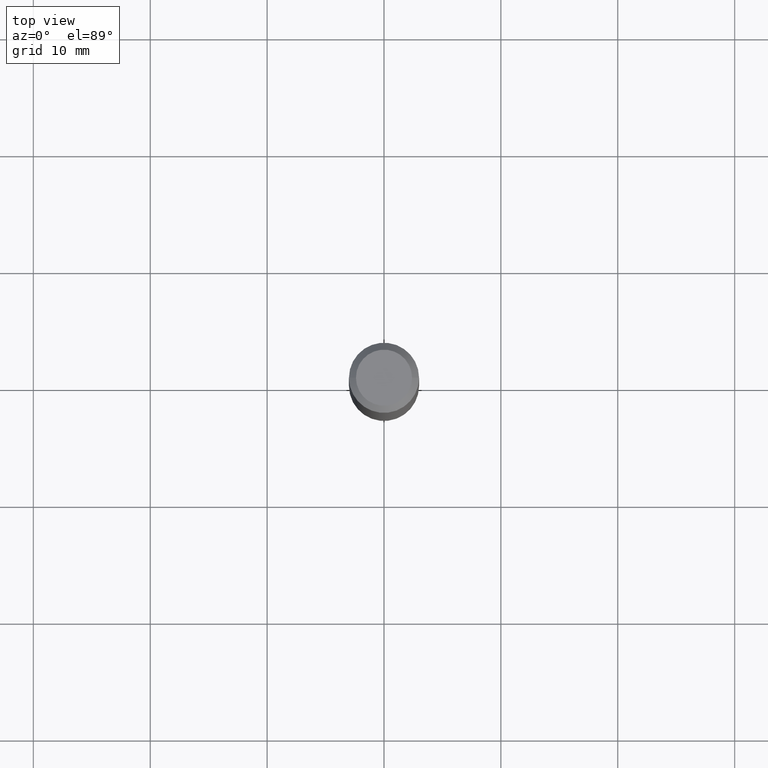
[diagram: clean part render]
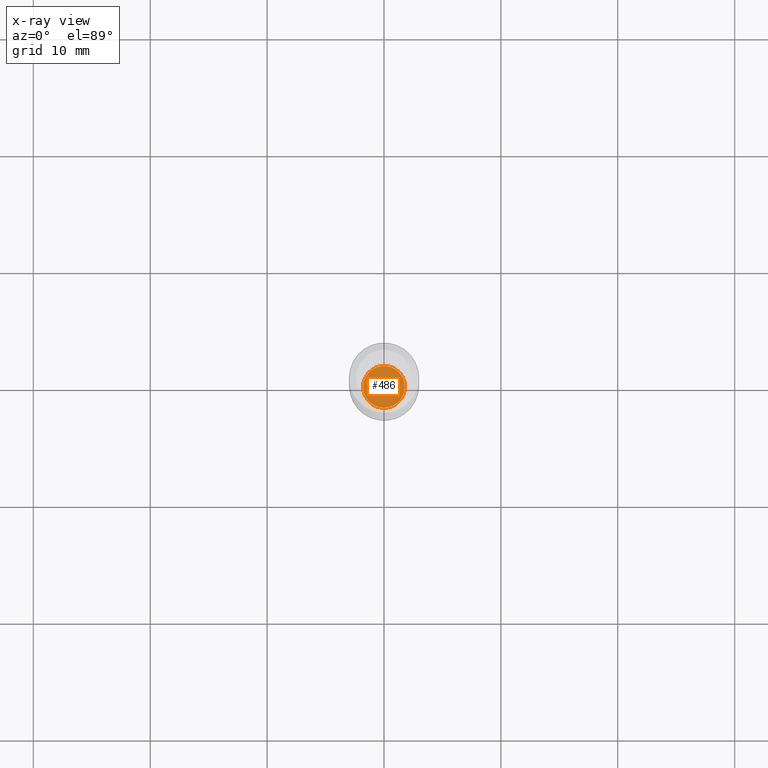
[diagram: x-ray — body ghosted, one internal face saturated and labeled with its STEP entity id]
A machine part, top view, then the same camera in x-ray: the body is ghosted and one INTERNAL B-rep face — a face not visible from any outside direction — is saturated and labeled: STEP entity #486.
In plain terms, the highlighted planar face has unit normal (-0, 0, 1).
Its self-contained STEP definition (entity closure, byte-faithful):
#20 = DIRECTION ( 'NONE',  ( 1.000000000000000000, -6.982962677686269866E-15, 0.000000000000000000 ) ) ;
#38 = EDGE_LOOP ( 'NONE', ( #317, #190 ) ) ;
#50 = DIRECTION ( 'NONE',  ( 1.000000000000000000, -6.982962677686265922E-15, 4.876176775795935793E-29 ) ) ;
#51 = CARTESIAN_POINT ( 'NONE',  ( 0.07034999999999999587, -6.759158723866442575E-15, -1.795199999999999685 ) ) ;
#55 = CIRCLE ( 'NONE', #312, 0.07034999999999999587 ) ;
#68 = CARTESIAN_POINT ( 'NONE',  ( 4.390105600863556886E-29, -6.267907299491213327E-15, -1.795199999999999685 ) ) ;
#93 = CARTESIAN_POINT ( 'NONE',  ( 4.390105600863556886E-29, -6.267907299491213327E-15, -1.795199999999999685 ) ) ;
#96 = DIRECTION ( 'NONE',  ( 1.000000000000000000, -6.982962677686269866E-15, 0.000000000000000000 ) ) ;
#128 = CARTESIAN_POINT ( 'NONE',  ( 4.390105600863556886E-29, -6.267907299491213327E-15, -1.795199999999999685 ) ) ;
#190 = ORIENTED_EDGE ( 'NONE', *, *, #263, .F. ) ;
#204 = DIRECTION ( 'NONE',  ( -2.445468806185136597E-29, 3.491481338843145583E-15, 1.000000000000000000 ) ) ;
#209 = AXIS2_PLACEMENT_3D ( 'NONE', #93, #393, #50 ) ;
#263 = EDGE_CURVE ( 'NONE', #310, #313, #323, .T. ) ;
#275 = PLANE ( 'NONE',  #209 ) ;
#310 = VERTEX_POINT ( 'NONE', #394 ) ;
#312 = AXIS2_PLACEMENT_3D ( 'NONE', #68, #412, #20 ) ;
#313 = VERTEX_POINT ( 'NONE', #51 ) ;
#317 = ORIENTED_EDGE ( 'NONE', *, *, #345, .F. ) ;
#323 = CIRCLE ( 'NONE', #438, 0.07034999999999999587 ) ;
#345 = EDGE_CURVE ( 'NONE', #313, #310, #55, .T. ) ;
#387 = FACE_OUTER_BOUND ( 'NONE', #38, .T. ) ;
#393 = DIRECTION ( 'NONE',  ( -2.438088387897960049E-29, 3.491481338843145188E-15, 1.000000000000000000 ) ) ;
#394 = CARTESIAN_POINT ( 'NONE',  ( -0.07034999999999999587, -5.765391257709872266E-15, -1.795199999999999685 ) ) ;
#412 = DIRECTION ( 'NONE',  ( -2.445468806185136597E-29, 3.491481338843145583E-15, 1.000000000000000000 ) ) ;
#438 = AXIS2_PLACEMENT_3D ( 'NONE', #128, #204, #96 ) ;
#486 = ADVANCED_FACE ( 'NONE', ( #387 ), #275, .F. ) ;